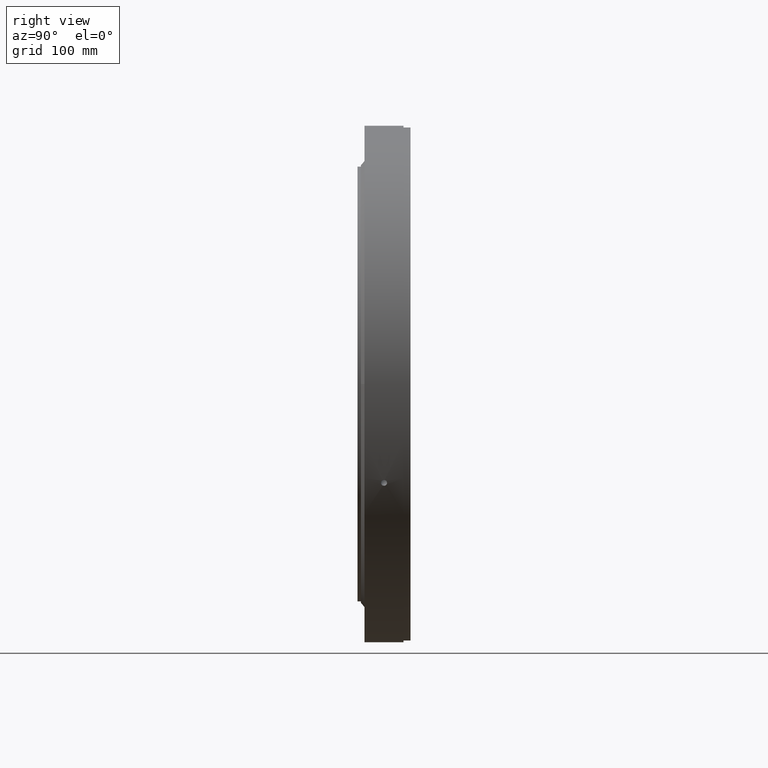
[diagram: clean part render]
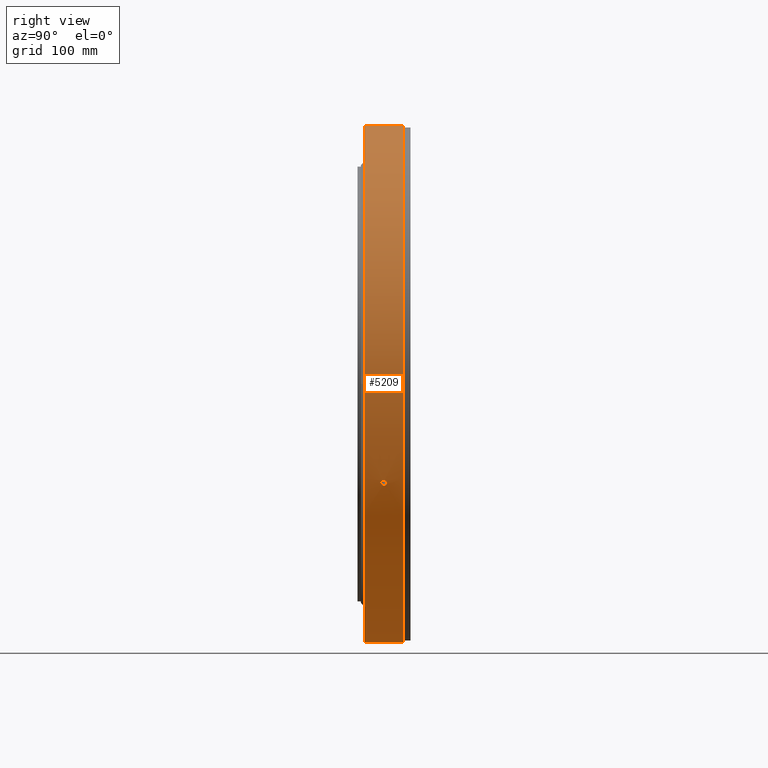
[diagram: same view with one face highlighted and labeled with its STEP entity id]
A machine part, right view. The second image highlights one B-rep face of the part: STEP entity #5209.
In plain terms, the highlighted cylindrical surface (partial cylindrical patch) has radius 370 mm, axis along (0, -1, -0).
Its self-contained STEP definition (entity closure, byte-faithful):
#19 = ORIENTED_EDGE ( 'NONE', *, *, #16951, .F. ) ;
#83 = B_SPLINE_CURVE_WITH_KNOTS ( 'NONE', 3,
 ( #2411, #2438, #2468, #2493, #2525, #2542, #2549, #2572, #2628, #2632, #2651, #2680, #2384, #2361, #2388, #2306, #2251, #2281, #2225, #2230, #2310, #2013, #2043, #2047, #2073, #2096, #2120, #2147, #2151, #2168, #2197, #2204, #1940, #1964 ),
 .UNSPECIFIED., .F., .F.,
 ( 4, 2, 2, 2, 2, 2, 2, 2, 2, 2, 2, 2, 2, 2, 2, 2, 4 ),
 ( 0.01406918724691567100, 0.01494831290073572900, 0.01582743855455578600, 0.01670656420837584400, 0.01758568986219590300, 0.01846481551601596200, 0.01934394116983602000, 0.02022306682365607900, 0.02110219247747614100, 0.02198131813129619600, 0.02286044378511625800, 0.02373956943893631300, 0.02461869509275637100, 0.02549782074657643000, 0.02637694640039648900, 0.02725607205421654700, 0.02813519770803660600 ),
 .UNSPECIFIED. ) ;
#426 = ORIENTED_EDGE ( 'NONE', *, *, #5649, .T. ) ;
#672 = ORIENTED_EDGE ( 'NONE', *, *, #4880, .T. ) ;
#712 = CARTESIAN_POINT ( 'NONE',  ( 2.601341135008604100E-015, -22.16364734299516900, -7.744460120454373600E-016 ) ) ;
#734 = DIRECTION ( 'NONE',  ( 5.551115123125782700E-017, -3.750753461571474700E-017, 1.000000000000000000 ) ) ;
#758 = DIRECTION ( 'NONE',  ( 1.173697223544192200E-016, -1.000000000000000000, -3.494217355385783800E-017 ) ) ;
#1103 = ORIENTED_EDGE ( 'NONE', *, *, #10298, .F. ) ;
#1170 = AXIS2_PLACEMENT_3D ( 'NONE', #712, #2010, #734 ) ;
#1243 = ORIENTED_EDGE ( 'NONE', *, *, #9644, .T. ) ;
#1637 = CARTESIAN_POINT ( 'NONE',  ( -3.286352225923746100E-015, 28.00000000000006800, 9.783808595080217500E-016 ) ) ;
#1837 = DIRECTION ( 'NONE',  ( -5.551115123125783900E-017, 8.439195288535817800E-017, -1.000000000000000000 ) ) ;
#1925 = DIRECTION ( 'NONE',  ( -1.173697223544192200E-016, 1.000000000000000000, 8.822830751849692900E-017 ) ) ;
#1940 = CARTESIAN_POINT ( 'NONE',  ( 343.5322197012816900, -0.2972612874546528600, -137.4249396110851100 ) ) ;
#1964 = CARTESIAN_POINT ( 'NONE',  ( 343.5322197012816300, -5.652384142560327600E-009, -137.4249396110850800 ) ) ;
#2010 = DIRECTION ( 'NONE',  ( 1.173697223544192200E-016, -1.000000000000000000, -3.494217355385783800E-017 ) ) ;
#2013 = CARTESIAN_POINT ( 'NONE',  ( 342.5930706777474500, -4.045621305832101600, -139.7499996695805200 ) ) ;
#2043 = CARTESIAN_POINT ( 'NONE',  ( 342.6906358925521100, -3.907534937908298600, -139.5105294878294200 ) ) ;
#2047 = CARTESIAN_POINT ( 'NONE',  ( 342.8746953926037100, -3.581689215004867600, -139.0575529262806600 ) ) ;
#2073 = CARTESIAN_POINT ( 'NONE',  ( 342.9617376313320300, -3.391799542515107700, -138.8426797772885100 ) ) ;
#2096 = CARTESIAN_POINT ( 'NONE',  ( 343.1175221475049300, -2.976679880725011000, -138.4572468388630900 ) ) ;
#2120 = CARTESIAN_POINT ( 'NONE',  ( 343.1871866053992300, -2.750361302310289100, -138.2844242533601000 ) ) ;
#2147 = CARTESIAN_POINT ( 'NONE',  ( 343.3099687589843300, -2.259569382256796800, -137.9793187108760400 ) ) ;
#2151 = CARTESIAN_POINT ( 'NONE',  ( 343.3623096274922100, -1.997042032402238200, -137.8489643425406000 ) ) ;
#2168 = CARTESIAN_POINT ( 'NONE',  ( 343.4460295025567700, -1.455754825486244000, -137.6402465195616000 ) ) ;
#2197 = CARTESIAN_POINT ( 'NONE',  ( 343.4781101251451800, -1.173645404789358500, -137.5601368680268600 ) ) ;
#2204 = CARTESIAN_POINT ( 'NONE',  ( 343.5213882769549500, -0.5914376956053100100, -137.4520250362473600 ) ) ;
#2225 = CARTESIAN_POINT ( 'NONE',  ( 342.0595575902763100, -4.471227278709403800, -141.0508479830693300 ) ) ;
#2230 = CARTESIAN_POINT ( 'NONE',  ( 342.2783441883269700, -4.357378016622304200, -140.5191010336159800 ) ) ;
#2251 = CARTESIAN_POINT ( 'NONE',  ( 341.7204334514361200, -4.499748804936510600, -141.8704810465760900 ) ) ;
#2281 = CARTESIAN_POINT ( 'NONE',  ( 341.9475230668575700, -4.500248021464534200, -141.3222540828769200 ) ) ;
#2306 = CARTESIAN_POINT ( 'NONE',  ( 341.6083311781113700, -4.470445374188490600, -142.1401800429024400 ) ) ;
#2310 = CARTESIAN_POINT ( 'NONE',  ( 342.3865345121823800, -4.271332660844351800, -140.2552511273426900 ) ) ;
#2361 = CARTESIAN_POINT ( 'NONE',  ( 341.2764919955554900, -4.268829502198476800, -142.9350552388978900 ) ) ;
#2384 = CARTESIAN_POINT ( 'NONE',  ( 341.0659402378751100, -4.042873778886102400, -143.4367401142169200 ) ) ;
#2388 = CARTESIAN_POINT ( 'NONE',  ( 341.3869492852082900, -4.355727589209164900, -142.6710677420671200 ) ) ;
#2411 = CARTESIAN_POINT ( 'NONE',  ( 340.0880688099958900, -5.652383109768909200E-009, -145.7398554036866800 ) ) ;
#2438 = CARTESIAN_POINT ( 'NONE',  ( 340.0880688099960600, -0.2936306207375630200, -145.7398554036867300 ) ) ;
#2468 = CARTESIAN_POINT ( 'NONE',  ( 340.0992842687919600, -0.5854558476087137200, -145.7136923834767100 ) ) ;
#2493 = CARTESIAN_POINT ( 'NONE',  ( 340.1445703773924300, -1.165421254211929500, -145.6079481036327900 ) ) ;
#2525 = CARTESIAN_POINT ( 'NONE',  ( 340.1785834633972700, -1.449890039147382600, -145.5284986196267300 ) ) ;
#2542 = CARTESIAN_POINT ( 'NONE',  ( 340.2666726964667400, -1.991451255372088400, -145.3224139963333500 ) ) ;
#2548 = LINE ( 'NONE', #16335, #7766 ) ;
#2549 = CARTESIAN_POINT ( 'NONE',  ( 340.3213024450065500, -2.252563024340930000, -145.1944840069961900 ) ) ;
#2572 = CARTESIAN_POINT ( 'NONE',  ( 340.4503295898769000, -2.745439945837437000, -144.8916842543689800 ) ) ;
#2628 = CARTESIAN_POINT ( 'NONE',  ( 340.5232444332251000, -2.972154902826563000, -144.7202921917027500 ) ) ;
#2632 = CARTESIAN_POINT ( 'NONE',  ( 340.6851919636296800, -3.387315615092202100, -144.3386398303884400 ) ) ;
#2651 = CARTESIAN_POINT ( 'NONE',  ( 340.7753534728709600, -3.577392092610852000, -144.1257032607564100 ) ) ;
#2680 = CARTESIAN_POINT ( 'NONE',  ( 340.9656857917966000, -3.904562748980144000, -143.6748446579903800 ) ) ;
#3605 = CARTESIAN_POINT ( 'NONE',  ( 343.5213845239245500, 0.5896871693366950700, -137.4520339713657200 ) ) ;
#4318 = CARTESIAN_POINT ( 'NONE',  ( 343.5322197012816900, 0.2973284121313351000, -137.4249396110851100 ) ) ;
#4327 = CARTESIAN_POINT ( 'NONE',  ( -6.585105752401746400E-014, 28.00000000000009900, -370.0000000000000000 ) ) ;
#4880 = EDGE_CURVE ( 'NONE', #15742, #17901, #17363, .T. ) ;
#5209 = ADVANCED_FACE ( 'NONE', ( #16084, #16062 ), #15721, .T. ) ;
#5253 = ORIENTED_EDGE ( 'NONE', *, *, #14507, .F. ) ;
#5440 = CARTESIAN_POINT ( 'NONE',  ( 343.5322197012816300, -5.652384142560327600E-009, -137.4249396110850800 ) ) ;
#5649 = EDGE_CURVE ( 'NONE', #8672, #13694, #21087, .T. ) ;
#6079 = CARTESIAN_POINT ( 'NONE',  ( 343.4788937407404300, 1.164871999017282700, -137.5581797740019000 ) ) ;
#6260 = CIRCLE ( 'NONE', #21732, 370.0000000000000000 ) ;
#7557 = CARTESIAN_POINT ( 'NONE',  ( 2.053912595556539300E-014, 28.00000000000003600, 370.0000000000000000 ) ) ;
#7766 = VECTOR ( 'NONE', #16267, 1000.000000000000000 ) ;
#8672 = VERTEX_POINT ( 'NONE', #7557 ) ;
#8729 = CARTESIAN_POINT ( 'NONE',  ( 2.382547818148912400E-014, -27.99999999999995000, 370.0000000000000000 ) ) ;
#9644 = EDGE_CURVE ( 'NONE', #17901, #15742, #83, .T. ) ;
#9759 = VERTEX_POINT ( 'NONE', #4327 ) ;
#10298 = EDGE_CURVE ( 'NONE', #10538, #13694, #20750, .T. ) ;
#10538 = VERTEX_POINT ( 'NONE', #18161 ) ;
#11156 = CARTESIAN_POINT ( 'NONE',  ( 2.314046709057400000E-014, -22.16364734299518300, 370.0000000000000000 ) ) ;
#11934 = CARTESIAN_POINT ( 'NONE',  ( 343.5322197012816300, -5.652384142560327600E-009, -137.4249396110850800 ) ) ;
#12509 = CARTESIAN_POINT ( 'NONE',  ( 3.286352225923730300E-015, -27.99999999999993600, -9.783808595080172100E-016 ) ) ;
#12587 = DIRECTION ( 'NONE',  ( 5.551115123125782700E-017, -3.750753461571474700E-017, 1.000000000000000000 ) ) ;
#13694 = VERTEX_POINT ( 'NONE', #8729 ) ;
#13819 = CARTESIAN_POINT ( 'NONE',  ( 340.0880688099958900, -5.652383109768909200E-009, -145.7398554036866800 ) ) ;
#14507 = EDGE_CURVE ( 'NONE', #8672, #9759, #6260, .T. ) ;
#15019 = EDGE_LOOP ( 'NONE', ( #19, #5253, #426, #1103 ) ) ;
#15532 = CARTESIAN_POINT ( 'NONE',  ( 340.0880688099958900, -5.652383109768909200E-009, -145.7398554036866800 ) ) ;
#15721 = CYLINDRICAL_SURFACE ( 'NONE', #1170, 370.0000000000000000 ) ;
#15742 = VERTEX_POINT ( 'NONE', #11934 ) ;
#16062 = FACE_BOUND ( 'NONE', #18487, .T. ) ;
#16084 = FACE_OUTER_BOUND ( 'NONE', #15019, .T. ) ;
#16267 = DIRECTION ( 'NONE',  ( 1.173697223544192200E-016, -1.000000000000000000, -3.494217355385783800E-017 ) ) ;
#16335 = CARTESIAN_POINT ( 'NONE',  ( -6.324971638900885400E-014, -22.16364734299515500, -370.0000000000000000 ) ) ;
#16719 = DIRECTION ( 'NONE',  ( 1.173697223544192200E-016, -1.000000000000000000, -3.494217355385783800E-017 ) ) ;
#16951 = EDGE_CURVE ( 'NONE', #9759, #10538, #2548, .T. ) ;
#17363 = B_SPLINE_CURVE_WITH_KNOTS ( 'NONE', 3,
 ( #5440, #4318, #3605, #6079, #21999, #22101, #22864, #21750, #21950, #22789, #19491, #22427, #22476, #22765, #22669, #22645, #22281, #22494, #22353, #22648, #22048, #21559, #21531, #22469, #21650, #21879, #21461, #18159, #18405, #20617, #17885, #18431, #18133, #15532 ),
 .UNSPECIFIED., .F., .F.,
 ( 4, 2, 2, 2, 2, 2, 2, 2, 2, 2, 2, 2, 2, 2, 2, 2, 4 ),
 ( 2.498947305061557800E-018, 0.0008793242029322318000, 0.001758648405864461200, 0.002637972608796690700, 0.003517296811728919800, 0.004396621014661148900, 0.005275945217593378800, 0.006155269420525607900, 0.007034593623457837000, 0.007913917826390065200, 0.008793242029322294300, 0.009672566232254523400, 0.01055189043518675400, 0.01143121463811898300, 0.01231053884105121200, 0.01318986304398344100, 0.01406918724691567100 ),
 .UNSPECIFIED. ) ;
#17885 = CARTESIAN_POINT ( 'NONE',  ( 340.1449459955407000, 1.168567032593220900, -145.6070706429353300 ) ) ;
#17901 = VERTEX_POINT ( 'NONE', #13819 ) ;
#18133 = CARTESIAN_POINT ( 'NONE',  ( 340.0880688099958900, 0.2936969254340172100, -145.7398554036867600 ) ) ;
#18159 = CARTESIAN_POINT ( 'NONE',  ( 340.3225205559086200, 2.257528655841125600, -145.1916270305190200 ) ) ;
#18161 = CARTESIAN_POINT ( 'NONE',  ( -6.585105752401746400E-014, -27.99999999999992200, -370.0000000000000000 ) ) ;
#18405 = CARTESIAN_POINT ( 'NONE',  ( 340.2672129696138100, 1.994556072513954200, -145.3211496513864300 ) ) ;
#18431 = CARTESIAN_POINT ( 'NONE',  ( 340.0996645770337100, 0.5919633312736520800, -145.7128047294236800 ) ) ;
#18487 = EDGE_LOOP ( 'NONE', ( #672, #1243 ) ) ;
#19491 = CARTESIAN_POINT ( 'NONE',  ( 342.8773814505409000, 3.576388547549638200, -139.0509324233437700 ) ) ;
#20617 = CARTESIAN_POINT ( 'NONE',  ( 340.1784236896967300, 1.449123533815053000, -145.5288727851017800 ) ) ;
#20750 = CIRCLE ( 'NONE', #22738, 370.0000000000000000 ) ;
#21087 = LINE ( 'NONE', #11156, #22884 ) ;
#21461 = CARTESIAN_POINT ( 'NONE',  ( 340.4502859090375200, 2.744957665628065900, -144.8917850733809000 ) ) ;
#21531 = CARTESIAN_POINT ( 'NONE',  ( 340.9657632915902400, 3.904598307106373700, -143.6746593020286000 ) ) ;
#21559 = CARTESIAN_POINT ( 'NONE',  ( 341.0680386808433600, 4.045561983453815500, -143.4317510348111300 ) ) ;
#21650 = CARTESIAN_POINT ( 'NONE',  ( 340.6874664803064000, 3.392748624836682900, -144.3332751872420700 ) ) ;
#21732 = AXIS2_PLACEMENT_3D ( 'NONE', #1637, #1925, #1837 ) ;
#21750 = CARTESIAN_POINT ( 'NONE',  ( 343.1891527996953100, 2.743372113841738600, -138.2795432253819000 ) ) ;
#21879 = CARTESIAN_POINT ( 'NONE',  ( 340.5233291122770500, 2.972764108634161400, -144.7200969918755200 ) ) ;
#21950 = CARTESIAN_POINT ( 'NONE',  ( 343.1180748760432400, 2.974983054420148300, -138.4558767637426500 ) ) ;
#21999 = CARTESIAN_POINT ( 'NONE',  ( 343.4467219048746600, 1.450677043435960200, -137.6385192247211100 ) ) ;
#22048 = CARTESIAN_POINT ( 'NONE',  ( 341.2788804803703900, 4.270947080120699900, -142.9293530125089300 ) ) ;
#22101 = CARTESIAN_POINT ( 'NONE',  ( 343.3626112221836600, 1.995686092411558000, -137.8482135403350800 ) ) ;
#22281 = CARTESIAN_POINT ( 'NONE',  ( 341.9483574773626600, 4.499895667985590800, -141.3202284398434800 ) ) ;
#22353 = CARTESIAN_POINT ( 'NONE',  ( 341.6093023761752100, 4.470844474911392500, -142.1378479272230500 ) ) ;
#22427 = CARTESIAN_POINT ( 'NONE',  ( 342.6921748960641000, 3.905343540677231200, -139.5067517476717600 ) ) ;
#22469 = CARTESIAN_POINT ( 'NONE',  ( 340.7760888442306900, 3.578753374490207100, -144.1239630824790900 ) ) ;
#22476 = CARTESIAN_POINT ( 'NONE',  ( 342.5933301232301500, 4.045119395938928400, -139.7493595019314200 ) ) ;
#22494 = CARTESIAN_POINT ( 'NONE',  ( 341.7237174621970400, 4.500103755251884300, -141.8625640243830600 ) ) ;
#22645 = CARTESIAN_POINT ( 'NONE',  ( 342.0597810165325000, 4.471353806229354100, -141.0503122436655900 ) ) ;
#22648 = CARTESIAN_POINT ( 'NONE',  ( 341.3871606709187200, 4.355940715429976100, -142.6705639309234900 ) ) ;
#22669 = CARTESIAN_POINT ( 'NONE',  ( 342.2808238723458800, 4.355841870693613900, -140.5130669453267300 ) ) ;
#22738 = AXIS2_PLACEMENT_3D ( 'NONE', #12509, #16719, #12587 ) ;
#22765 = CARTESIAN_POINT ( 'NONE',  ( 342.3884094759470100, 4.269499714149641400, -140.2506698117908000 ) ) ;
#22789 = CARTESIAN_POINT ( 'NONE',  ( 342.9624540644818500, 3.390112587099467100, -138.8409097461077400 ) ) ;
#22864 = CARTESIAN_POINT ( 'NONE',  ( 343.3110950210561300, 2.254174879000252000, -137.9765150648336500 ) ) ;
#22884 = VECTOR ( 'NONE', #758, 1000.000000000000000 ) ;